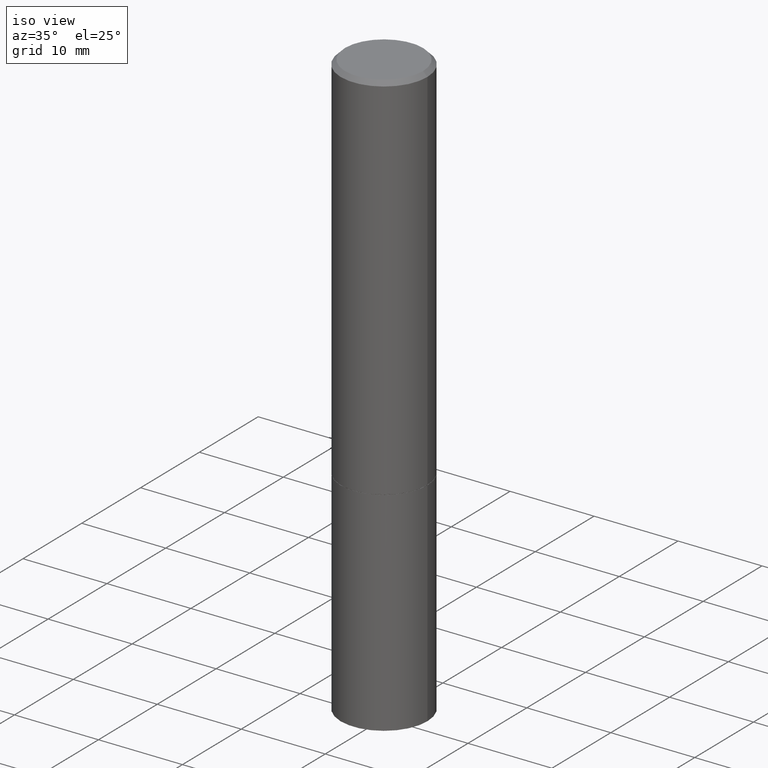
[diagram: clean part render]
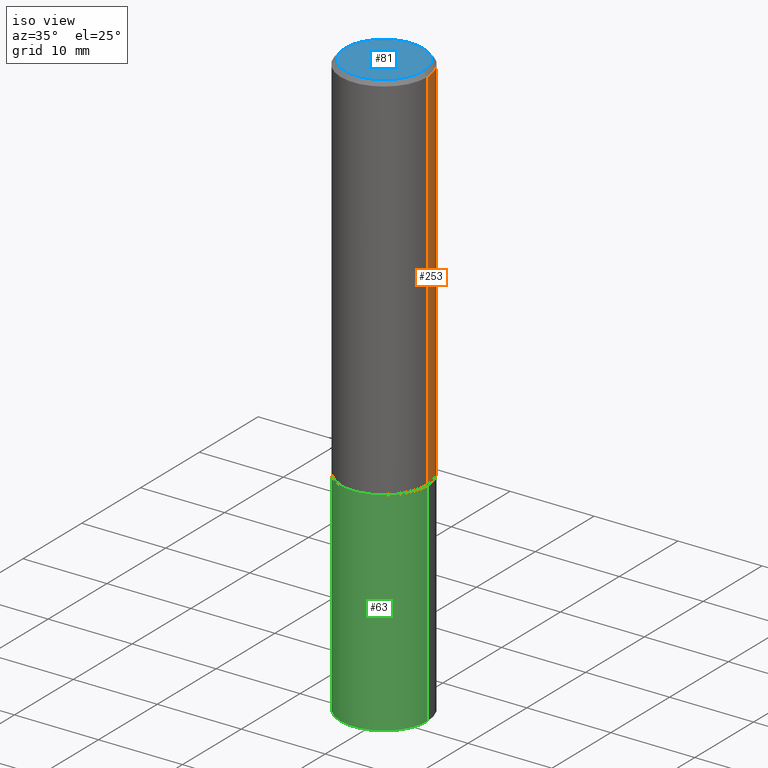
[diagram: same view with three faces highlighted in distinct colors, each labeled with its STEP entity id]
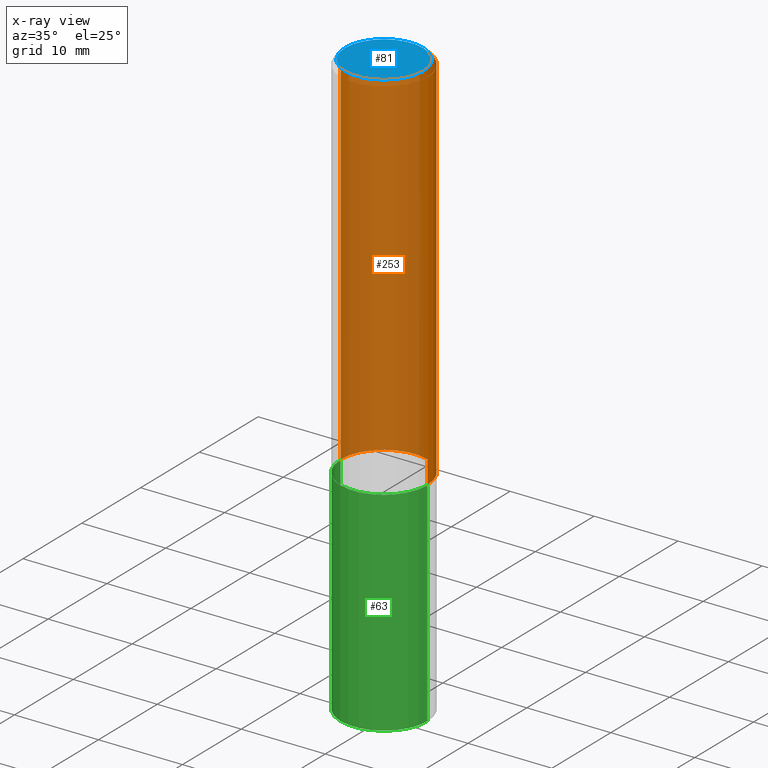
[diagram: x-ray of the same camera — body ghosted, the three highlighted faces saturated]
A machine part, iso view with three faces highlighted in distinct colors.
The next image is the same camera in x-ray (body ghosted, the three faces saturated) — at least one of them is partly hidden behind the body in this view.
Their STEP definitions:

[orange] entity #253 — the highlighted cylindrical surface (partial cylindrical patch) has radius 5.1587 mm, axis along (-0, 0, 1).
#10 = ORIENTED_EDGE ( 'NONE', *, *, #214, .T. ) ;
#17 = VERTEX_POINT ( 'NONE', #365 ) ;
#24 = CIRCLE ( 'NONE', #154, 0.2031000000000000028 ) ;
#29 = DIRECTION ( 'NONE',  ( -2.445468806185136877E-29, 3.491481338843145188E-15, 1.000000000000000000 ) ) ;
#35 = EDGE_LOOP ( 'NONE', ( #194, #10, #325, #234 ) ) ;
#48 = AXIS2_PLACEMENT_3D ( 'NONE', #343, #67, #248 ) ;
#67 = DIRECTION ( 'NONE',  ( -2.445468806185136597E-29, 3.491481338843145583E-15, 1.000000000000000000 ) ) ;
#87 = DIRECTION ( 'NONE',  ( -2.445468806185136877E-29, 3.491481338843145188E-15, 1.000000000000000000 ) ) ;
#93 = CARTESIAN_POINT ( 'NONE',  ( 0.000000000000000000, 0.000000000000000000, 0.000000000000000000 ) ) ;
#106 = VECTOR ( 'NONE', #87, 39.37007874015748143 ) ;
#108 = DIRECTION ( 'NONE',  ( 1.000000000000000000, -6.982962677686265922E-15, 4.876176775795935793E-29 ) ) ;
#120 = CYLINDRICAL_SURFACE ( 'NONE', #316, 0.2030999999999999195 ) ;
#127 = VECTOR ( 'NONE', #29, 39.37007874015748143 ) ;
#134 = DIRECTION ( 'NONE',  ( -2.445468806185136597E-29, 3.491481338843145583E-15, 1.000000000000000000 ) ) ;
#154 = AXIS2_PLACEMENT_3D ( 'NONE', #249, #224, #165 ) ;
#165 = DIRECTION ( 'NONE',  ( 1.000000000000000000, -6.982962677686264344E-15, 0.000000000000000000 ) ) ;
#178 = LINE ( 'NONE', #299, #106 ) ;
#188 = VERTEX_POINT ( 'NONE', #327 ) ;
#194 = ORIENTED_EDGE ( 'NONE', *, *, #355, .T. ) ;
#195 = LINE ( 'NONE', #280, #127 ) ;
#200 = CARTESIAN_POINT ( 'NONE',  ( -0.2030999999999998085, 1.348410093061216294E-15, -0.02000000000000004552 ) ) ;
#214 = EDGE_CURVE ( 'NONE', #237, #275, #178, .T. ) ;
#224 = DIRECTION ( 'NONE',  ( -2.445468806185136597E-29, 3.491481338843145583E-15, 1.000000000000000000 ) ) ;
#234 = ORIENTED_EDGE ( 'NONE', *, *, #379, .F. ) ;
#237 = VERTEX_POINT ( 'NONE', #324 ) ;
#248 = DIRECTION ( 'NONE',  ( 1.000000000000000000, -6.982962677686266711E-15, 0.000000000000000000 ) ) ;
#249 = CARTESIAN_POINT ( 'NONE',  ( 4.277124942017804002E-29, -6.106600861636660875E-15, -1.748999999999999888 ) ) ;
#253 = ADVANCED_FACE ( 'NONE', ( #281 ), #120, .T. ) ;
#275 = VERTEX_POINT ( 'NONE', #200 ) ;
#280 = CARTESIAN_POINT ( 'NONE',  ( 0.2030999999999999195, -1.418239719838079986E-15, 9.903515031641541941E-30 ) ) ;
#281 = FACE_OUTER_BOUND ( 'NONE', #35, .T. ) ;
#299 = CARTESIAN_POINT ( 'NONE',  ( -0.2030999999999999195, 1.443112296328762905E-15, -9.990357168307709999E-30 ) ) ;
#316 = AXIS2_PLACEMENT_3D ( 'NONE', #93, #134, #108 ) ;
#324 = CARTESIAN_POINT ( 'NONE',  ( -0.2031000000000000028, -1.645102947877997012E-15, -1.748999999999999888 ) ) ;
#325 = ORIENTED_EDGE ( 'NONE', *, *, #351, .F. ) ;
#327 = CARTESIAN_POINT ( 'NONE',  ( 0.2030999999999998085, -1.463196770124259971E-15, -0.02000000000000004552 ) ) ;
#343 = CARTESIAN_POINT ( 'NONE',  ( 4.890937612370284544E-31, -6.982962677686307633E-17, -0.02000000000000004552 ) ) ;
#347 = CIRCLE ( 'NONE', #48, 0.2030999999999998085 ) ;
#351 = EDGE_CURVE ( 'NONE', #188, #275, #347, .T. ) ;
#355 = EDGE_CURVE ( 'NONE', #17, #237, #24, .T. ) ;
#365 = CARTESIAN_POINT ( 'NONE',  ( 0.2031000000000000028, -7.524840581474740861E-15, -1.748999999999999888 ) ) ;
#379 = EDGE_CURVE ( 'NONE', #17, #188, #195, .T. ) ;

[blue] entity #81 — the highlighted planar face has unit normal (0, -0, -1).
#31 = DIRECTION ( 'NONE',  ( -2.445468806185136597E-29, 3.491481338843145583E-15, 1.000000000000000000 ) ) ;
#32 = AXIS2_PLACEMENT_3D ( 'NONE', #70, #321, #171 ) ;
#61 = DIRECTION ( 'NONE',  ( -1.000000000000000000, 6.982962677686265922E-15, -4.876176775795935793E-29 ) ) ;
#70 = CARTESIAN_POINT ( 'NONE',  ( 0.000000000000000000, 0.000000000000000000, 0.000000000000000000 ) ) ;
#77 = CARTESIAN_POINT ( 'NONE',  ( -0.1830999999999998185, 1.313495279672785236E-15, -9.063697641761069382E-30 ) ) ;
#81 = ADVANCED_FACE ( 'NONE', ( #210 ), #337, .F. ) ;
#94 = CARTESIAN_POINT ( 'NONE',  ( 1.278580466284353982E-15, 0.1830999999999998185, -6.392902331421793574E-16 ) ) ;
#148 = CIRCLE ( 'NONE', #32, 0.1830999999999998185 ) ;
#151 = CARTESIAN_POINT ( 'NONE',  ( 0.000000000000000000, 0.000000000000000000, 0.000000000000000000 ) ) ;
#171 = DIRECTION ( 'NONE',  ( 1.000000000000000000, -6.982962677686266711E-15, 4.876176775795935793E-29 ) ) ;
#173 = AXIS2_PLACEMENT_3D ( 'NONE', #94, #218, #61 ) ;
#180 = AXIS2_PLACEMENT_3D ( 'NONE', #151, #31, #375 ) ;
#203 = EDGE_LOOP ( 'NONE', ( #334, #267 ) ) ;
#210 = FACE_OUTER_BOUND ( 'NONE', #203, .T. ) ;
#218 = DIRECTION ( 'NONE',  ( 2.438088387897960049E-29, -3.491481338843145188E-15, -1.000000000000000000 ) ) ;
#232 = VERTEX_POINT ( 'NONE', #77 ) ;
#247 = CARTESIAN_POINT ( 'NONE',  ( 0.1830999999999998185, -1.359676976758112991E-15, 9.224940175330597298E-30 ) ) ;
#254 = EDGE_CURVE ( 'NONE', #294, #232, #148, .T. ) ;
#267 = ORIENTED_EDGE ( 'NONE', *, *, #254, .T. ) ;
#294 = VERTEX_POINT ( 'NONE', #247 ) ;
#321 = DIRECTION ( 'NONE',  ( -2.445468806185136597E-29, 3.491481338843145583E-15, 1.000000000000000000 ) ) ;
#334 = ORIENTED_EDGE ( 'NONE', *, *, #341, .T. ) ;
#337 = PLANE ( 'NONE',  #173 ) ;
#341 = EDGE_CURVE ( 'NONE', #232, #294, #381, .T. ) ;
#375 = DIRECTION ( 'NONE',  ( 1.000000000000000000, -6.982962677686266711E-15, 4.876176775795935793E-29 ) ) ;
#381 = CIRCLE ( 'NONE', #180, 0.1830999999999998185 ) ;

[green] entity #63 — the highlighted cylindrical surface (partial cylindrical patch) has radius 5.1587 mm, axis along (-0, 0, 1).
#13 = CARTESIAN_POINT ( 'NONE',  ( -0.2031000000000000028, -6.412720716068313768E-15, -1.750000000000000000 ) ) ;
#49 = DIRECTION ( 'NONE',  ( 1.000000000000000000, -6.982962677686269866E-15, 0.000000000000000000 ) ) ;
#58 = LINE ( 'NONE', #156, #389 ) ;
#63 = ADVANCED_FACE ( 'NONE', ( #366 ), #92, .T. ) ;
#68 = ORIENTED_EDGE ( 'NONE', *, *, #155, .F. ) ;
#78 = DIRECTION ( 'NONE',  ( -2.445468806185136597E-29, 3.491481338843145583E-15, 1.000000000000000000 ) ) ;
#82 = VECTOR ( 'NONE', #330, 39.37007874015748143 ) ;
#84 = CARTESIAN_POINT ( 'NONE',  ( 6.725039217009124520E-29, -9.601573681818649859E-15, -2.750000000000000000 ) ) ;
#89 = CIRCLE ( 'NONE', #331, 0.2031000000000000028 ) ;
#91 = CARTESIAN_POINT ( 'NONE',  ( 4.279570410823988484E-29, -6.110092342975504671E-15, -1.750000000000000000 ) ) ;
#92 = CYLINDRICAL_SURFACE ( 'NONE', #307, 0.2031000000000000028 ) ;
#99 = EDGE_CURVE ( 'NONE', #361, #319, #58, .T. ) ;
#104 = EDGE_LOOP ( 'NONE', ( #68, #263, #386, #297 ) ) ;
#116 = VERTEX_POINT ( 'NONE', #335 ) ;
#123 = CARTESIAN_POINT ( 'NONE',  ( 0.000000000000000000, 0.000000000000000000, 0.000000000000000000 ) ) ;
#139 = AXIS2_PLACEMENT_3D ( 'NONE', #84, #303, #229 ) ;
#155 = EDGE_CURVE ( 'NONE', #116, #206, #235, .T. ) ;
#156 = CARTESIAN_POINT ( 'NONE',  ( 0.2031000000000000028, -1.418239719838080775E-15, 9.903515031641546145E-30 ) ) ;
#167 = EDGE_CURVE ( 'NONE', #116, #361, #286, .T. ) ;
#190 = CARTESIAN_POINT ( 'NONE',  ( 0.2031000000000000028, -7.528332062813585446E-15, -1.750000000000000000 ) ) ;
#204 = CARTESIAN_POINT ( 'NONE',  ( -0.2031000000000000028, 1.443112296328763497E-15, -9.990357168307714203E-30 ) ) ;
#206 = VERTEX_POINT ( 'NONE', #13 ) ;
#217 = DIRECTION ( 'NONE',  ( -2.445468806185136597E-29, 3.491481338843145583E-15, 1.000000000000000000 ) ) ;
#229 = DIRECTION ( 'NONE',  ( 1.000000000000000000, -6.982962677686264344E-15, 0.000000000000000000 ) ) ;
#235 = LINE ( 'NONE', #204, #82 ) ;
#263 = ORIENTED_EDGE ( 'NONE', *, *, #167, .T. ) ;
#268 = EDGE_CURVE ( 'NONE', #206, #319, #89, .T. ) ;
#271 = DIRECTION ( 'NONE',  ( -2.445468806185136877E-29, 3.491481338843145188E-15, 1.000000000000000000 ) ) ;
#286 = CIRCLE ( 'NONE', #139, 0.2031000000000000028 ) ;
#297 = ORIENTED_EDGE ( 'NONE', *, *, #268, .F. ) ;
#303 = DIRECTION ( 'NONE',  ( -2.445468806185136597E-29, 3.491481338843145583E-15, 1.000000000000000000 ) ) ;
#306 = DIRECTION ( 'NONE',  ( 1.000000000000000000, -6.982962677686266711E-15, 4.876176775795935793E-29 ) ) ;
#307 = AXIS2_PLACEMENT_3D ( 'NONE', #123, #217, #306 ) ;
#310 = CARTESIAN_POINT ( 'NONE',  ( 0.2030999999999997530, -1.099494082516604752E-14, -2.750000000000000000 ) ) ;
#319 = VERTEX_POINT ( 'NONE', #190 ) ;
#330 = DIRECTION ( 'NONE',  ( -2.445468806185136877E-29, 3.491481338843145188E-15, 1.000000000000000000 ) ) ;
#331 = AXIS2_PLACEMENT_3D ( 'NONE', #91, #78, #49 ) ;
#335 = CARTESIAN_POINT ( 'NONE',  ( -0.2030999999999997530, -8.183333961980571451E-15, -2.750000000000000000 ) ) ;
#361 = VERTEX_POINT ( 'NONE', #310 ) ;
#366 = FACE_OUTER_BOUND ( 'NONE', #104, .T. ) ;
#386 = ORIENTED_EDGE ( 'NONE', *, *, #99, .T. ) ;
#389 = VECTOR ( 'NONE', #271, 39.37007874015748143 ) ;